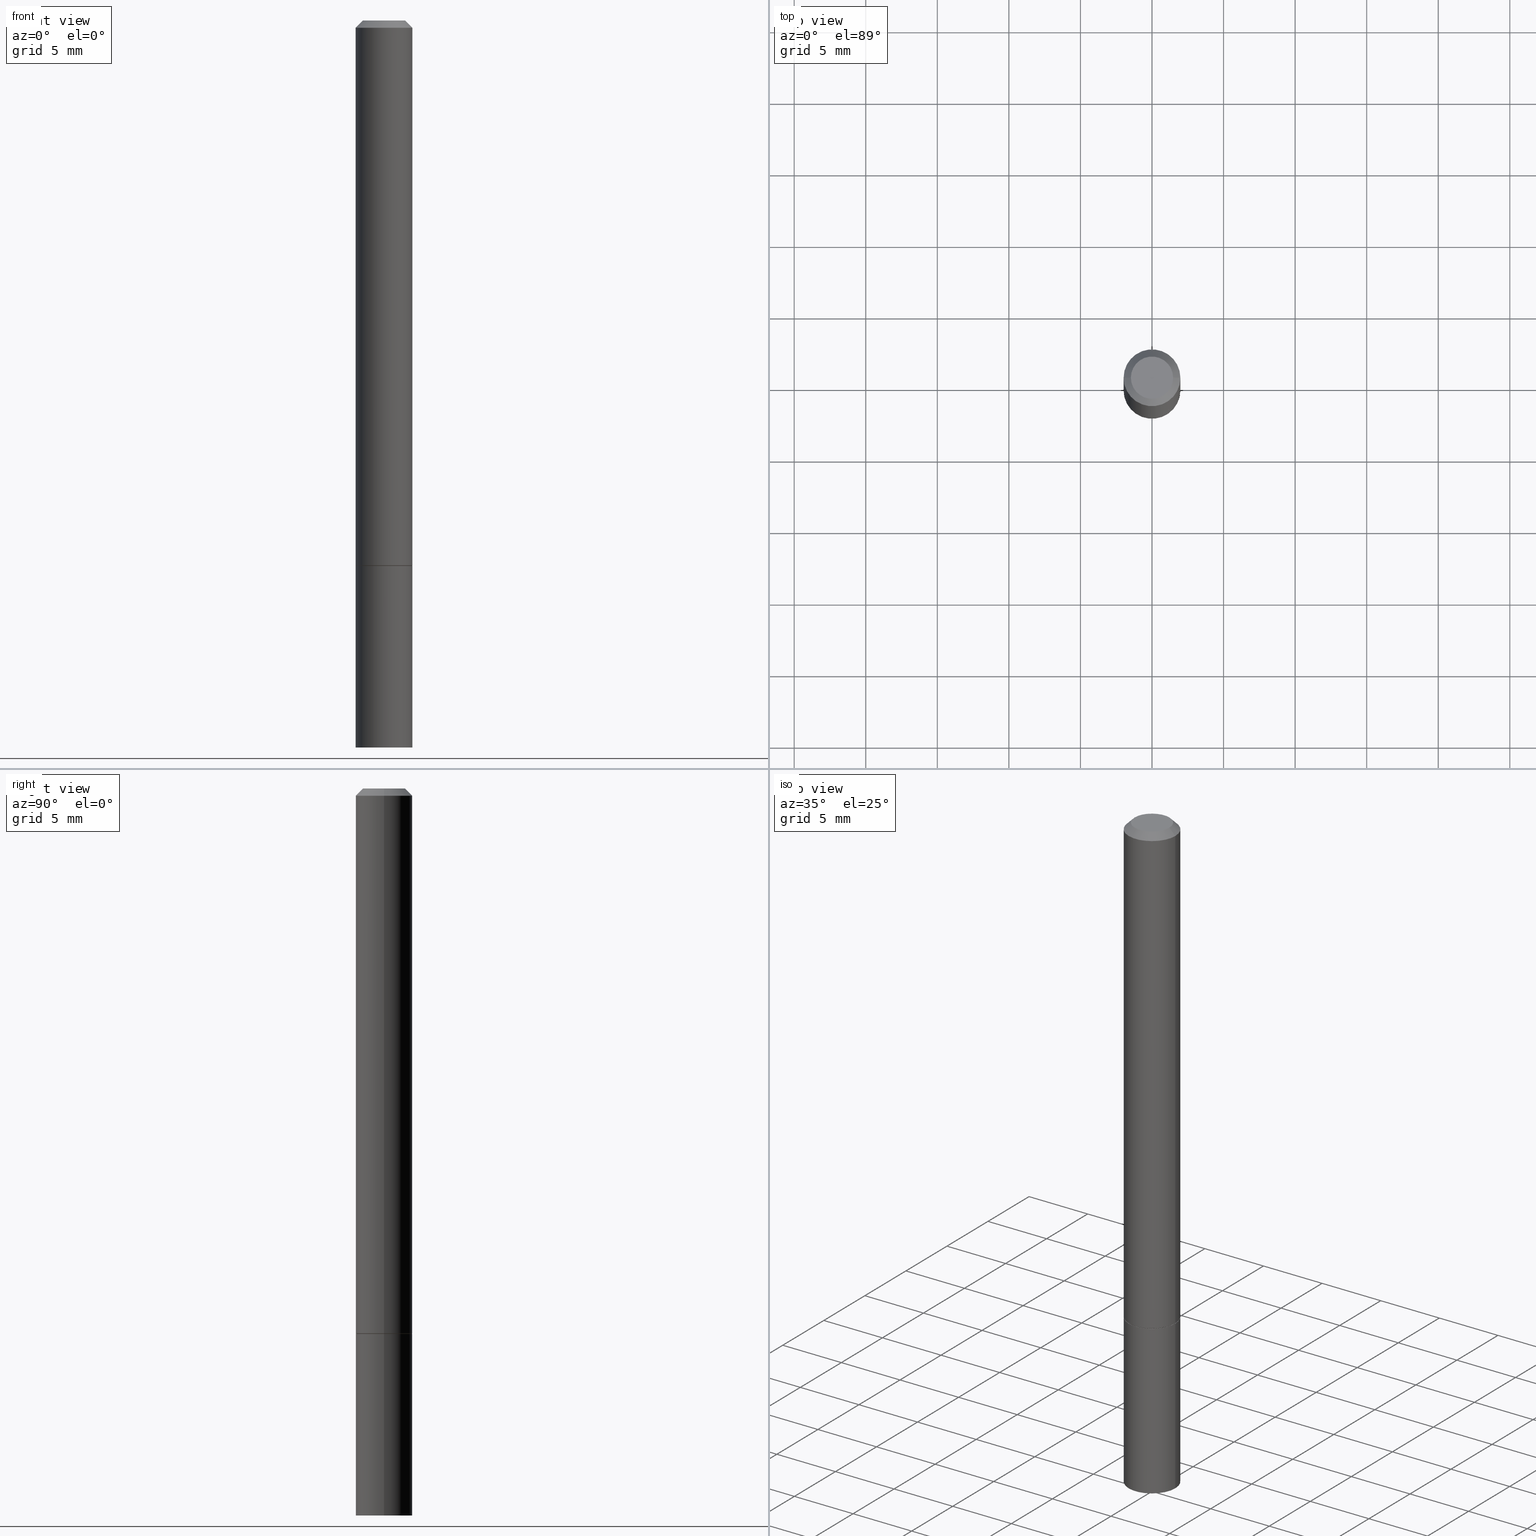
[diagram: canonical four-view strip — front | top / right | iso, engineering-drawing reading convention]
A machine part, canonical four-view strip (front | top / right | iso — engineering-drawing reading convention). The complete STEP part file that produces these views, byte-faithful:
ISO-10303-21;
HEADER;
FILE_DESCRIPTION (( 'STEP AP203' ),
    '1' );
FILE_NAME ('39019.STEP',
    '2023-03-21T20:43:33',
    ( '' ),
    ( '' ),
    'SwSTEP 2.0',
    'SolidWorks 2022',
    '' );
FILE_SCHEMA (( 'CONFIG_CONTROL_DESIGN' ));
ENDSEC;

DATA;
#1 = DIRECTION ( 'NONE',  ( -1.000000000000000000, 6.982962677686265922E-15, 0.000000000000000000 ) ) ;
#2 = CARTESIAN_POINT ( 'NONE',  ( 3.668203209277704335E-29, -5.237222008264717388E-15, -1.499999999999999778 ) ) ;
#3 = AXIS2_PLACEMENT_3D ( 'NONE', #119, #22, #182 ) ;
#4 = ADVANCED_FACE ( 'NONE', ( #9 ), #243, .T. ) ;
#5 = DIRECTION ( 'NONE',  ( 1.000000000000000000, -6.982962677686266711E-15, 0.000000000000000000 ) ) ;
#6 = APPLICATION_PROTOCOL_DEFINITION ( 'international standard', 'config_control_design', 1994, #260 ) ;
#7 = CARTESIAN_POINT ( 'NONE',  ( 3.665757740471518732E-29, -5.233730526925875170E-15, -1.498999999999999666 ) ) ;
#8 = COORDINATED_UNIVERSAL_TIME_OFFSET ( 5, 0, .BEHIND. ) ;
#9 = FACE_OUTER_BOUND ( 'NONE', #172, .T. ) ;
#10 = DIRECTION ( 'NONE',  ( 2.445468806185136597E-29, -3.491481338843145583E-15, -1.000000000000000000 ) ) ;
#11 = VERTEX_POINT ( 'NONE', #309 ) ;
#12 = LINE ( 'NONE', #373, #55 ) ;
#13 = EDGE_LOOP ( 'NONE', ( #302, #257, #346, #352 ) ) ;
#14 = FACE_OUTER_BOUND ( 'NONE', #168, .T. ) ;
#15 = VERTEX_POINT ( 'NONE', #120 ) ;
#16 = APPROVAL_DATE_TIME ( #300, #184 ) ;
#17 = AXIS2_PLACEMENT_3D ( 'NONE', #185, #124, #218 ) ;
#18 = EDGE_CURVE ( 'NONE', #200, #15, #203, .T. ) ;
#19 = VERTEX_POINT ( 'NONE', #269 ) ;
#20 = CALENDAR_DATE ( 2023, 21, 3 ) ;
#21 = LINE ( 'NONE', #204, #263 ) ;
#22 = DIRECTION ( 'NONE',  ( -2.445468806185136597E-29, 3.491481338843145583E-15, 1.000000000000000000 ) ) ;
#23 = DIRECTION ( 'NONE',  ( 1.000000000000000000, -6.982962677686265922E-15, 0.000000000000000000 ) ) ;
#25 = ORIENTED_EDGE ( 'NONE', *, *, #281, .T. ) ;
#24 = VECTOR ( 'NONE', #341, 39.37007874015748143 ) ;
#26 = LOCAL_TIME ( 16, 43, 33.00000000000000000, #386 ) ;
#27 = AXIS2_PLACEMENT_3D ( 'NONE', #201, #169, #131 ) ;
#28 = DATE_AND_TIME ( #20, #63 ) ;
#29 = DIRECTION ( 'NONE',  ( -2.445468806185136597E-29, 3.491481338843145583E-15, 1.000000000000000000 ) ) ;
#30 = ADVANCED_FACE ( 'NONE', ( #303 ), #207, .T. ) ;
#31 = CC_DESIGN_PERSON_AND_ORGANIZATION_ASSIGNMENT ( #82, #328, ( #95 ) ) ;
#32 = PERSON_AND_ORGANIZATION ( #306, #222 ) ;
#33 = AXIS2_PLACEMENT_3D ( 'NONE', #186, #99, #274 ) ;
#34 = LOCAL_TIME ( 16, 43, 33.00000000000000000, #318 ) ;
#35 = CARTESIAN_POINT ( 'NONE',  ( -0.07810000000000000275, -5.555158466346866012E-15, -1.499999999999999778 ) ) ;
#36 = EDGE_LOOP ( 'NONE', ( #81, #72, #299 ) ) ;
#37 = DIRECTION ( 'NONE',  ( 1.000000000000000000, -6.982962677686266711E-15, 4.876176775795935793E-29 ) ) ;
#38 = CC_DESIGN_APPROVAL ( #69, ( #246 ) ) ;
#39 = ORIENTED_EDGE ( 'NONE', *, *, #301, .F. ) ;
#40 = PERSON_AND_ORGANIZATION ( #306, #222 ) ;
#41 = LINE ( 'NONE', #196, #85 ) ;
#42 = ADVANCED_FACE ( 'NONE', ( #64 ), #311, .T. ) ;
#43 = ORIENTED_EDGE ( 'NONE', *, *, #73, .F. ) ;
#44 = DIRECTION ( 'NONE',  ( -1.000000000000000000, 6.982962677686265922E-15, -4.876176775795935793E-29 ) ) ;
#45 = ORIENTED_EDGE ( 'NONE', *, *, #118, .T. ) ;
#46 = FACE_OUTER_BOUND ( 'NONE', #178, .T. ) ;
#47 = AXIS2_PLACEMENT_3D ( 'NONE', #61, #159, #275 ) ;
#48 = ORIENTED_EDGE ( 'NONE', *, *, #94, .F. ) ;
#49 = AXIS2_PLACEMENT_3D ( 'NONE', #331, #110, #304 ) ;
#50 = LINE ( 'NONE', #59, #320 ) ;
#51 = CARTESIAN_POINT ( 'NONE',  ( -0.07809999999999980846, 4.755397583504331521E-16, -0.02000000000000001776 ) ) ;
#52 = ORIENTED_EDGE ( 'NONE', *, *, #365, .F. ) ;
#53 =( NAMED_UNIT ( * ) SI_UNIT ( $, .STERADIAN. ) SOLID_ANGLE_UNIT ( ) );
#54 = CLOSED_SHELL ( 'NONE', ( #161, #187, #189, #289, #30, #4, #327, #180 ) ) ;
#55 = VECTOR ( 'NONE', #106, 39.37007874015748143 ) ;
#56 = CARTESIAN_POINT ( 'NONE',  ( 4.890937612370276662E-31, -6.982962677686296539E-17, -0.02000000000000001776 ) ) ;
#57 = EDGE_CURVE ( 'NONE', #285, #11, #277, .T. ) ;
#58 = DATE_AND_TIME ( #334, #26 ) ;
#59 = CARTESIAN_POINT ( 'NONE',  ( 0.07809999999999980846, -6.056345204028183286E-16, -0.02000000000000001776 ) ) ;
#60 = DATE_TIME_ROLE ( 'classification_date' ) ;
#61 = CARTESIAN_POINT ( 'NONE',  ( 3.665757740471518732E-29, -5.233730526925875170E-15, -1.498999999999999666 ) ) ;
#62 = VECTOR ( 'NONE', #177, 39.37007874015748143 ) ;
#63 = LOCAL_TIME ( 16, 43, 33.00000000000000000, #294 ) ;
#64 = FACE_OUTER_BOUND ( 'NONE', #13, .T. ) ;
#65 = DIRECTION ( 'NONE',  ( -2.445468806185136597E-29, 3.491481338843145583E-15, 1.000000000000000000 ) ) ;
#66 = CARTESIAN_POINT ( 'NONE',  ( 0.07809999999999991949, -5.453693851272968448E-16, 3.808294061896621499E-30 ) ) ;
#67 = CIRCLE ( 'NONE', #139, 0.07809999999999980846 ) ;
#68 = AXIS2_PLACEMENT_3D ( 'NONE', #226, #345, #44 ) ;
#69 = APPROVAL ( #216, 'UNSPECIFIED' ) ;
#70 = EDGE_CURVE ( 'NONE', #290, #285, #362, .T. ) ;
#71 = DIRECTION ( 'NONE',  ( -1.000000000000000000, 6.982962677686265922E-15, -4.876176775795935793E-29 ) ) ;
#72 = ORIENTED_EDGE ( 'NONE', *, *, #73, .T. ) ;
#73 = EDGE_CURVE ( 'NONE', #316, #200, #158, .T. ) ;
#74 = CARTESIAN_POINT ( 'NONE',  ( 0.05809999999999985315, -5.021147270366716439E-16, 3.173941575800420060E-30 ) ) ;
#75 = VECTOR ( 'NONE', #114, 39.37007874015748143 ) ;
#76 = ORIENTED_EDGE ( 'NONE', *, *, #70, .T. ) ;
#77 = DIRECTION ( 'NONE',  ( 1.000000000000000000, -6.982962677686266711E-15, 4.876176775795935232E-29 ) ) ;
#78 = EDGE_CURVE ( 'NONE', #368, #11, #67, .T. ) ;
#79 = VERTEX_POINT ( 'NONE', #282 ) ;
#80 = DIRECTION ( 'NONE',  ( 1.000000000000000000, -6.982962677686266711E-15, 4.876176775795935232E-29 ) ) ;
#81 = ORIENTED_EDGE ( 'NONE', *, *, #281, .F. ) ;
#82 = PERSON_AND_ORGANIZATION ( #306, #222 ) ;
#83 = CARTESIAN_POINT ( 'NONE',  ( -0.07809999999999980846, 4.755397583504331521E-16, -0.02000000000000001776 ) ) ;
#84 = ORIENTED_EDGE ( 'NONE', *, *, #94, .T. ) ;
#85 = VECTOR ( 'NONE', #292, 39.37007874015748854 ) ;
#86 = CARTESIAN_POINT ( 'NONE',  ( 3.668203209277704335E-29, -5.237222008264717388E-15, -1.499999999999999778 ) ) ;
#87 = CARTESIAN_POINT ( 'NONE',  ( 0.07810000000000000275, -5.453693851272974364E-16, 3.808294061896625703E-30 ) ) ;
#88 = APPROVAL_ROLE ( '' ) ;
#89 = VECTOR ( 'NONE', #93, 39.37007874015748854 ) ;
#90 = AXIS2_PLACEMENT_3D ( 'NONE', #126, #250, #1 ) ;
#91 = DIRECTION ( 'NONE',  ( -1.000000000000000000, 6.982962677686265922E-15, 0.000000000000000000 ) ) ;
#92 = EDGE_CURVE ( 'NONE', #285, #378, #360, .T. ) ;
#93 = DIRECTION ( 'NONE',  ( 0.7071067811865232589, -2.468850131082003836E-15, 0.7071067811865715536 ) ) ;
#94 = EDGE_CURVE ( 'NONE', #15, #165, #121, .T. ) ;
#95 = PRODUCT_DEFINITION_FORMATION_WITH_SPECIFIED_SOURCE ( 'ANY', '', #205, .NOT_KNOWN. ) ;
#96 = LINE ( 'NONE', #193, #174 ) ;
#97 = DIRECTION ( 'NONE',  ( -2.445468806185136597E-29, 3.491481338843145583E-15, 1.000000000000000000 ) ) ;
#98 = CARTESIAN_POINT ( 'NONE',  ( 0.000000000000000000, 0.000000000000000000, 0.000000000000000000 ) ) ;
#99 = DIRECTION ( 'NONE',  ( -2.445468806185136597E-29, 3.491481338843145583E-15, 1.000000000000000000 ) ) ;
#100 = DIRECTION ( 'NONE',  ( -1.000000000000000000, 6.982962677686267499E-15, 0.000000000000000000 ) ) ;
#101 = LOCAL_TIME ( 16, 43, 33.00000000000000000, #8 ) ;
#102 = ORIENTED_EDGE ( 'NONE', *, *, #115, .T. ) ;
#103 = CYLINDRICAL_SURFACE ( 'NONE', #253, 0.07810000000000000275 ) ;
#104 = ORIENTED_EDGE ( 'NONE', *, *, #115, .F. ) ;
#105 = CC_DESIGN_PERSON_AND_ORGANIZATION_ASSIGNMENT ( #40, #228, ( #95 ) ) ;
#106 = DIRECTION ( 'NONE',  ( -2.445468806185136877E-29, 3.491481338843145188E-15, 1.000000000000000000 ) ) ;
#107 = CIRCLE ( 'NONE', #3, 0.07810000000000000275 ) ;
#108 = ORIENTED_EDGE ( 'NONE', *, *, #242, .F. ) ;
#109 = EDGE_LOOP ( 'NONE', ( #264, #198, #151, #135 ) ) ;
#110 = DIRECTION ( 'NONE',  ( -2.438088387897960049E-29, 3.491481338843145188E-15, 1.000000000000000000 ) ) ;
#111 = EDGE_CURVE ( 'NONE', #378, #368, #96, .T. ) ;
#112 = ORIENTED_EDGE ( 'NONE', *, *, #210, .T. ) ;
#113 = CONICAL_SURFACE ( 'NONE', #244, 0.07710000000000000187, 0.7853981633974141952 ) ;
#114 = DIRECTION ( 'NONE',  ( -0.7071067811865464625, 2.468850131082245622E-15, -0.7071067811865485719 ) ) ;
#115 = EDGE_CURVE ( 'NONE', #79, #290, #173, .T. ) ;
#116 = FACE_OUTER_BOUND ( 'NONE', #344, .T. ) ;
#117 = DIRECTION ( 'NONE',  ( -2.445468806185136597E-29, 3.491481338843145583E-15, 1.000000000000000000 ) ) ;
#118 = EDGE_CURVE ( 'NONE', #378, #285, #220, .T. ) ;
#119 = CARTESIAN_POINT ( 'NONE',  ( 4.890937612370273194E-29, -6.982962677686291165E-15, -2.000000000000000000 ) ) ;
#120 = CARTESIAN_POINT ( 'NONE',  ( 0.07810000000000000275, -5.782591393392014824E-15, -1.499999999999999778 ) ) ;
#121 = CIRCLE ( 'NONE', #342, 0.07810000000000000275 ) ;
#122 = CC_DESIGN_PERSON_AND_ORGANIZATION_ASSIGNMENT ( #130, #166, ( #246 ) ) ;
#123 = DIRECTION ( 'NONE',  ( 1.000000000000000000, -6.982962677686267499E-15, 0.000000000000000000 ) ) ;
#124 = DIRECTION ( 'NONE',  ( -2.445468806185136597E-29, 3.491481338843145583E-15, 1.000000000000000000 ) ) ;
#125 = CIRCLE ( 'NONE', #140, 0.07810000000000000275 ) ;
#126 = CARTESIAN_POINT ( 'NONE',  ( 1.011592276483428826E-27, -1.444285671085496418E-13, -41.36598569259547986 ) ) ;
#127 = APPROVAL_ROLE ( '' ) ;
#128 = ADVANCED_FACE ( 'NONE', ( #336 ), #192, .F. ) ;
#129 = CARTESIAN_POINT ( 'NONE',  ( 3.668203209277704335E-29, -5.237222008264717388E-15, -1.499999999999999778 ) ) ;
#130 = PERSON_AND_ORGANIZATION ( #306, #222 ) ;
#131 = DIRECTION ( 'NONE',  ( 1.000000000000000000, -6.982962677686266711E-15, 0.000000000000000000 ) ) ;
#132 = CALENDAR_DATE ( 2023, 21, 3 ) ;
#133 = CIRCLE ( 'NONE', #361, 0.05809999999999985315 ) ;
#134 = ORIENTED_EDGE ( 'NONE', *, *, #118, .F. ) ;
#135 = ORIENTED_EDGE ( 'NONE', *, *, #78, .T. ) ;
#136 = PERSON_AND_ORGANIZATION ( #306, #222 ) ;
#137 = DIRECTION ( 'NONE',  ( 2.438088387897960049E-29, -3.491481338843145188E-15, -1.000000000000000000 ) ) ;
#138 = ORIENTED_EDGE ( 'NONE', *, *, #70, .F. ) ;
#139 = AXIS2_PLACEMENT_3D ( 'NONE', #363, #97, #123 ) ;
#140 = AXIS2_PLACEMENT_3D ( 'NONE', #312, #65, #188 ) ;
#141 = ORIENTED_EDGE ( 'NONE', *, *, #242, .T. ) ;
#142 = EDGE_CURVE ( 'NONE', #11, #368, #375, .T. ) ;
#143 = EDGE_CURVE ( 'NONE', #374, #200, #125, .T. ) ;
#144 = EDGE_LOOP ( 'NONE', ( #261, #45, #371, #322 ) ) ;
#145 = DIRECTION ( 'NONE',  ( 1.000000000000000000, -6.982962677686265922E-15, 0.000000000000000000 ) ) ;
#146 = MANIFOLD_SOLID_BREP ( 'Body-Move/Copy2[2]', #54 ) ;
#147 = SECURITY_CLASSIFICATION_LEVEL ( 'unclassified' ) ;
#148 = MANIFOLD_SOLID_BREP ( 'Body-Move/Copy2[1]', #278 ) ;
#149 = CARTESIAN_POINT ( 'NONE',  ( 0.07710000000000000187, -5.775608430714328810E-15, -1.499999999999999778 ) ) ;
#150 = CC_DESIGN_APPROVAL ( #357, ( #367 ) ) ;
#151 = ORIENTED_EDGE ( 'NONE', *, *, #301, .T. ) ;
#152 = PLANE ( 'NONE',  #49 ) ;
#153 = DIRECTION ( 'NONE',  ( -1.000000000000000000, 6.982962677686267499E-15, 0.000000000000000000 ) ) ;
#154 = DIRECTION ( 'NONE',  ( 1.000000000000000000, -6.982962677686266711E-15, 4.876176775795935232E-29 ) ) ;
#155 = PERSON_AND_ORGANIZATION ( #306, #222 ) ;
#156 = CC_DESIGN_APPROVAL ( #184, ( #95 ) ) ;
#157 = CC_DESIGN_DATE_AND_TIME_ASSIGNMENT ( #28, #60, ( #367 ) ) ;
#158 = LINE ( 'NONE', #163, #314 ) ;
#159 = DIRECTION ( 'NONE',  ( -2.445468806185136597E-29, 3.491481338843145583E-15, 1.000000000000000000 ) ) ;
#160 = CIRCLE ( 'NONE', #27, 0.07810000000000000275 ) ;
#161 = ADVANCED_FACE ( 'NONE', ( #313 ), #113, .T. ) ;
#162 = PERSON_AND_ORGANIZATION_ROLE ( 'design_owner' ) ;
#163 = CARTESIAN_POINT ( 'NONE',  ( 5.019963266536729081E-19, -6.968671878504553375E-15, -1.995906952437995097 ) ) ;
#164 = APPLICATION_PROTOCOL_DEFINITION ( 'international standard', 'config_control_design', 1994, #240 ) ;
#165 = VERTEX_POINT ( 'NONE', #35 ) ;
#166 = PERSON_AND_ORGANIZATION_ROLE ( 'creator' ) ;
#167 = AXIS2_PLACEMENT_3D ( 'NONE', #354, #356, #272 ) ;
#168 = EDGE_LOOP ( 'NONE', ( #175, #254, #170, #39 ) ) ;
#169 = DIRECTION ( 'NONE',  ( -2.445468806185136597E-29, 3.491481338843145583E-15, 1.000000000000000000 ) ) ;
#170 = ORIENTED_EDGE ( 'NONE', *, *, #142, .T. ) ;
#171 = CC_DESIGN_PERSON_AND_ORGANIZATION_ASSIGNMENT ( #32, #162, ( #205 ) ) ;
#172 = EDGE_LOOP ( 'NONE', ( #108, #102, #76, #134 ) ) ;
#173 = CIRCLE ( 'NONE', #388, 0.07710000000000000187 ) ;
#174 = VECTOR ( 'NONE', #213, 39.37007874015748143 ) ;
#175 = ORIENTED_EDGE ( 'NONE', *, *, #210, .F. ) ;
#176 = DIRECTION ( 'NONE',  ( 0.7071067811865464625, -7.319954787623252890E-15, -0.7071067811865485719 ) ) ;
#177 = DIRECTION ( 'NONE',  ( -2.445468806185136877E-29, 3.491481338843145188E-15, 1.000000000000000000 ) ) ;
#178 = EDGE_LOOP ( 'NONE', ( #84, #319 ) ) ;
#179 = CC_DESIGN_DATE_AND_TIME_ASSIGNMENT ( #343, #252, ( #246 ) ) ;
#180 = ADVANCED_FACE ( 'NONE', ( #259 ), #262, .F. ) ;
#181 = CONICAL_SURFACE ( 'NONE', #223, 751.2258538476644389, 1.518436449235073482 ) ;
#182 = DIRECTION ( 'NONE',  ( 1.000000000000000000, -6.982962677686266711E-15, 0.000000000000000000 ) ) ;
#183 = CARTESIAN_POINT ( 'NONE',  ( -0.07809999999999991949, -6.437593292558994518E-15, -2.000000000000000000 ) ) ;
#184 = APPROVAL ( #364, 'UNSPECIFIED' ) ;
#185 = CARTESIAN_POINT ( 'NONE',  ( 4.890937612370276662E-31, -6.982962677686296539E-17, -0.02000000000000001776 ) ) ;
#186 = CARTESIAN_POINT ( 'NONE',  ( 0.000000000000000000, 0.000000000000000000, 0.000000000000000000 ) ) ;
#187 = ADVANCED_FACE ( 'NONE', ( #295 ), #284, .T. ) ;
#188 = DIRECTION ( 'NONE',  ( 1.000000000000000000, -6.982962677686266711E-15, 0.000000000000000000 ) ) ;
#189 = ADVANCED_FACE ( 'NONE', ( #14 ), #332, .T. ) ;
#190 = DIRECTION ( 'NONE',  ( 1.000000000000000000, 0.000000000000000000, 0.000000000000000000 ) ) ;
#191 = AXIS2_PLACEMENT_3D ( 'NONE', #7, #29, #5 ) ;
#192 = CONICAL_SURFACE ( 'NONE', #90, 751.2258538476644389, 1.518436449235073482 ) ;
#193 = CARTESIAN_POINT ( 'NONE',  ( -0.07809999999999991949, 5.549338766286376731E-16, -3.841688305489077071E-30 ) ) ;
#194 = COORDINATED_UNIVERSAL_TIME_OFFSET ( 5, 0, .BEHIND. ) ;
#195 = ORIENTED_EDGE ( 'NONE', *, *, #249, .T. ) ;
#196 = CARTESIAN_POINT ( 'NONE',  ( -0.07710000000000000187, -4.689393558993680526E-15, -1.499999999999999778 ) ) ;
#197 = AXIS2_PLACEMENT_3D ( 'NONE', #224, #10, #100 ) ;
#198 = ORIENTED_EDGE ( 'NONE', *, *, #350, .F. ) ;
#199 = DIRECTION ( 'NONE',  ( -2.445468806185136597E-29, 3.491481338843145583E-15, 1.000000000000000000 ) ) ;
#200 = VERTEX_POINT ( 'NONE', #376 ) ;
#201 = CARTESIAN_POINT ( 'NONE',  ( 3.668203209277704335E-29, -5.237222008264717388E-15, -1.499999999999999778 ) ) ;
#202 = EDGE_LOOP ( 'NONE', ( #43, #25, #235 ) ) ;
#203 = LINE ( 'NONE', #87, #62 ) ;
#204 = CARTESIAN_POINT ( 'NONE',  ( -5.019963265560543563E-19, -6.968671878504553375E-15, -1.995906952437995097 ) ) ;
#205 = PRODUCT ( '39019', '39019', '', ( #276 ) ) ;
#206 =( LENGTH_UNIT ( ) NAMED_UNIT ( * ) SI_UNIT ( $, .METRE. ) );
#207 = CYLINDRICAL_SURFACE ( 'NONE', #247, 0.07809999999999991949 ) ;
#208 =( GEOMETRIC_REPRESENTATION_CONTEXT ( 3 ) GLOBAL_UNCERTAINTY_ASSIGNED_CONTEXT ( ( #233 ) ) GLOBAL_UNIT_ASSIGNED_CONTEXT ( ( #265, #234, #53 ) ) REPRESENTATION_CONTEXT ( 'NONE', 'WORKASPACE' ) );
#209 = CARTESIAN_POINT ( 'NONE',  ( 0.07810000000000000275, -5.779099912053172606E-15, -1.498999999999999666 ) ) ;
#210 = EDGE_CURVE ( 'NONE', #230, #19, #133, .T. ) ;
#211 = ADVANCED_FACE ( 'NONE', ( #370 ), #103, .T. ) ;
#212 = APPROVAL_DATE_TIME ( #58, #357 ) ;
#213 = DIRECTION ( 'NONE',  ( -2.445468806185136877E-29, 3.491481338843145188E-15, 1.000000000000000000 ) ) ;
#214 = EDGE_CURVE ( 'NONE', #165, #15, #160, .T. ) ;
#215 = DIRECTION ( 'NONE',  ( -2.445468806185136597E-29, 3.491481338843145583E-15, 1.000000000000000000 ) ) ;
#216 = APPROVAL_STATUS ( 'not_yet_approved' ) ;
#217 = ADVANCED_FACE ( 'NONE', ( #46 ), #297, .F. ) ;
#218 = DIRECTION ( 'NONE',  ( 1.000000000000000000, -6.982962677686267499E-15, 0.000000000000000000 ) ) ;
#219 = DIMENSIONAL_EXPONENTS ( 1.000000000000000000, 0.000000000000000000, 0.000000000000000000, 0.000000000000000000, 0.000000000000000000, 0.000000000000000000, 0.000000000000000000 ) ;
#220 = CIRCLE ( 'NONE', #47, 0.07810000000000000275 ) ;
#221 = APPROVAL_ROLE ( '' ) ;
#222 = ORGANIZATION ( 'UNSPECIFIED', 'UNSPECIFIED', '' ) ;
#223 = AXIS2_PLACEMENT_3D ( 'NONE', #382, #238, #91 ) ;
#224 = CARTESIAN_POINT ( 'NONE',  ( 4.890937612370276662E-31, -6.982962677686296539E-17, -0.02000000000000001776 ) ) ;
#225 = ORIENTED_EDGE ( 'NONE', *, *, #355, .T. ) ;
#226 = CARTESIAN_POINT ( 'NONE',  ( 5.453693851273340198E-16, 0.07809999999999475695, -1.500000000000000222 ) ) ;
#227 = ORIENTED_EDGE ( 'NONE', *, *, #350, .T. ) ;
#228 = PERSON_AND_ORGANIZATION_ROLE ( 'creator' ) ;
#229 = CARTESIAN_POINT ( 'NONE',  ( 0.000000000000000000, 0.000000000000000000, 0.000000000000000000 ) ) ;
#230 = VERTEX_POINT ( 'NONE', #74 ) ;
#231 = CARTESIAN_POINT ( 'NONE',  ( 0.000000000000000000, 0.000000000000000000, 0.000000000000000000 ) ) ;
#232 = EDGE_LOOP ( 'NONE', ( #323, #348, #293, #330 ) ) ;
#233 = UNCERTAINTY_MEASURE_WITH_UNIT (LENGTH_MEASURE( 1.000000000000000082E-05 ), #265, 'distance_accuracy_value', 'NONE');
#234 =( NAMED_UNIT ( * ) PLANE_ANGLE_UNIT ( ) SI_UNIT ( $, .RADIAN. ) );
#235 = ORIENTED_EDGE ( 'NONE', *, *, #355, .F. ) ;
#236 = AXIS2_PLACEMENT_3D ( 'NONE', #271, #333, #23 ) ;
#237 = AXIS2_PLACEMENT_3D ( 'NONE', #98, #340, #190 ) ;
#238 = DIRECTION ( 'NONE',  ( 2.445468806185136597E-29, -3.491481338843145583E-15, -1.000000000000000000 ) ) ;
#239 = DIRECTION ( 'NONE',  ( -0.9986295347545742773, 6.790662755453666100E-15, -0.05233595624293709697 ) ) ;
#240 = APPLICATION_CONTEXT ( 'configuration controlled 3d designs of mechanical parts and assemblies' ) ;
#241 = CARTESIAN_POINT ( 'NONE',  ( -0.07810000000000000275, -2.096846200222727419E-15, -1.498999999999999666 ) ) ;
#242 = EDGE_CURVE ( 'NONE', #79, #378, #41, .T. ) ;
#243 = CONICAL_SURFACE ( 'NONE', #236, 0.07710000000000000187, 0.7853981633974141952 ) ;
#244 = AXIS2_PLACEMENT_3D ( 'NONE', #251, #366, #288 ) ;
#245 = DIRECTION ( 'NONE',  ( -2.445468806185136597E-29, 3.491481338843145583E-15, 1.000000000000000000 ) ) ;
#246 = PRODUCT_DEFINITION ( 'UNKNOWN', '', #95, #317 ) ;
#247 = AXIS2_PLACEMENT_3D ( 'NONE', #380, #117, #154 ) ;
#248 = CC_DESIGN_SECURITY_CLASSIFICATION ( #367, ( #95 ) ) ;
#249 = EDGE_CURVE ( 'NONE', #374, #165, #12, .T. ) ;
#250 = DIRECTION ( 'NONE',  ( 2.445468806185136597E-29, -3.491481338843145583E-15, -1.000000000000000000 ) ) ;
#251 = CARTESIAN_POINT ( 'NONE',  ( 3.668203209277704335E-29, -5.237222008264717388E-15, -1.499999999999999778 ) ) ;
#252 = DATE_TIME_ROLE ( 'creation_date' ) ;
#253 = AXIS2_PLACEMENT_3D ( 'NONE', #231, #349, #80 ) ;
#254 = ORIENTED_EDGE ( 'NONE', *, *, #258, .T. ) ;
#255 = APPROVAL_DATE_TIME ( #280, #69 ) ;
#256 = DIRECTION ( 'NONE',  ( -2.445468806185136597E-29, 3.491481338843145583E-15, 1.000000000000000000 ) ) ;
#257 = ORIENTED_EDGE ( 'NONE', *, *, #143, .T. ) ;
#258 = EDGE_CURVE ( 'NONE', #230, #11, #50, .T. ) ;
#259 = FACE_OUTER_BOUND ( 'NONE', #326, .T. ) ;
#260 = APPLICATION_CONTEXT ( 'configuration controlled 3d designs of mechanical parts and assemblies' ) ;
#261 = ORIENTED_EDGE ( 'NONE', *, *, #111, .F. ) ;
#262 = PLANE ( 'NONE',  #315 ) ;
#263 = VECTOR ( 'NONE', #239, 39.37007874015748143 ) ;
#264 = ORIENTED_EDGE ( 'NONE', *, *, #258, .F. ) ;
#265 =( CONVERSION_BASED_UNIT ( 'INCH', #379 ) LENGTH_UNIT ( ) NAMED_UNIT ( #219 ) );
#266 = ORIENTED_EDGE ( 'NONE', *, *, #92, .F. ) ;
#267 = LINE ( 'NONE', #51, #75 ) ;
#268 = APPROVAL_PERSON_ORGANIZATION ( #155, #357, #88 ) ;
#269 = CARTESIAN_POINT ( 'NONE',  ( -0.05809999999999985315, 4.406249449620020947E-16, -2.959251149157179307E-30 ) ) ;
#270 = CARTESIAN_POINT ( 'NONE',  ( 4.880577650073855844E-29, -6.969173874831158221E-15, -1.995906952437995097 ) ) ;
#271 = CARTESIAN_POINT ( 'NONE',  ( 3.668203209277704335E-29, -5.237222008264717388E-15, -1.499999999999999778 ) ) ;
#272 = DIRECTION ( 'NONE',  ( 1.000000000000000000, -6.982962677686266711E-15, 4.876176775795935793E-29 ) ) ;
#273 = APPROVAL_PERSON_ORGANIZATION ( #279, #69, #127 ) ;
#274 = DIRECTION ( 'NONE',  ( 1.000000000000000000, -6.982962677686266711E-15, 4.876176775795935232E-29 ) ) ;
#275 = DIRECTION ( 'NONE',  ( 1.000000000000000000, -6.982962677686266711E-15, 0.000000000000000000 ) ) ;
#276 = MECHANICAL_CONTEXT ( 'NONE', #240, 'mechanical' ) ;
#277 = LINE ( 'NONE', #66, #24 ) ;
#278 = CLOSED_SHELL ( 'NONE', ( #211, #128, #383, #42, #217 ) ) ;
#279 = PERSON_AND_ORGANIZATION ( #306, #222 ) ;
#280 = DATE_AND_TIME ( #283, #34 ) ;
#281 = EDGE_CURVE ( 'NONE', #316, #374, #21, .T. ) ;
#282 = CARTESIAN_POINT ( 'NONE',  ( -0.07710000000000000187, -4.684095104645458124E-15, -1.499999999999999778 ) ) ;
#283 = CALENDAR_DATE ( 2023, 21, 3 ) ;
#284 = CYLINDRICAL_SURFACE ( 'NONE', #337, 0.07809999999999991949 ) ;
#285 = VERTEX_POINT ( 'NONE', #209 ) ;
#286 = CALENDAR_DATE ( 2023, 21, 3 ) ;
#287 = CIRCLE ( 'NONE', #353, 0.07710000000000000187 ) ;
#288 = DIRECTION ( 'NONE',  ( 1.000000000000000000, -6.982962677686265922E-15, 0.000000000000000000 ) ) ;
#289 = ADVANCED_FACE ( 'NONE', ( #358 ), #298, .T. ) ;
#290 = VERTEX_POINT ( 'NONE', #149 ) ;
#291 = PRODUCT_DEFINITION_SHAPE ( 'NONE', 'NONE',  #246 ) ;
#292 = DIRECTION ( 'NONE',  ( -0.7071067811865232589, 7.493145998870265808E-15, 0.7071067811865715536 ) ) ;
#293 = ORIENTED_EDGE ( 'NONE', *, *, #142, .F. ) ;
#294 = COORDINATED_UNIVERSAL_TIME_OFFSET ( 5, 0, .BEHIND. ) ;
#295 = FACE_OUTER_BOUND ( 'NONE', #232, .T. ) ;
#296 = EDGE_LOOP ( 'NONE', ( #225, #195, #48, #305 ) ) ;
#297 = PLANE ( 'NONE',  #68 ) ;
#298 = CONICAL_SURFACE ( 'NONE', #381, 0.07809999999999980846, 0.7853981633974468357 ) ;
#299 = ORIENTED_EDGE ( 'NONE', *, *, #143, .F. ) ;
#300 = DATE_AND_TIME ( #132, #347 ) ;
#301 = EDGE_CURVE ( 'NONE', #19, #368, #267, .T. ) ;
#302 = ORIENTED_EDGE ( 'NONE', *, *, #249, .F. ) ;
#303 = FACE_OUTER_BOUND ( 'NONE', #144, .T. ) ;
#304 = DIRECTION ( 'NONE',  ( 1.000000000000000000, -6.982962677686265922E-15, 4.876176775795935793E-29 ) ) ;
#305 = ORIENTED_EDGE ( 'NONE', *, *, #18, .F. ) ;
#306 = PERSON ( 'UNSPECIFIED', 'UNSPECIFIED', 'UNSPECIFIED', ('UNSPECIFIED'), ('UNSPECIFIED'), ('UNSPECIFIED') ) ;
#307 = APPROVAL_STATUS ( 'not_yet_approved' ) ;
#308 = SHAPE_DEFINITION_REPRESENTATION ( #291, #390 ) ;
#309 = CARTESIAN_POINT ( 'NONE',  ( 0.07809999999999980846, -6.056345204028183286E-16, -0.02000000000000001776 ) ) ;
#310 = DIRECTION ( 'NONE',  ( 0.9986295347545742773, -7.033825938271998700E-15, -0.05233595624293709697 ) ) ;
#311 = CYLINDRICAL_SURFACE ( 'NONE', #33, 0.07810000000000000275 ) ;
#312 = CARTESIAN_POINT ( 'NONE',  ( 4.890937612370273194E-29, -6.982962677686291165E-15, -2.000000000000000000 ) ) ;
#313 = FACE_OUTER_BOUND ( 'NONE', #351, .T. ) ;
#314 = VECTOR ( 'NONE', #310, 39.37007874015748143 ) ;
#315 = AXIS2_PLACEMENT_3D ( 'NONE', #321, #137, #71 ) ;
#316 = VERTEX_POINT ( 'NONE', #270 ) ;
#317 = DESIGN_CONTEXT ( 'detailed design', #260, 'design' ) ;
#318 = COORDINATED_UNIVERSAL_TIME_OFFSET ( 5, 0, .BEHIND. ) ;
#319 = ORIENTED_EDGE ( 'NONE', *, *, #214, .T. ) ;
#320 = VECTOR ( 'NONE', #176, 39.37007874015748143 ) ;
#321 = CARTESIAN_POINT ( 'NONE',  ( 4.057101315735710372E-16, 0.05809999999999985315, -2.028550657867862335E-16 ) ) ;
#322 = ORIENTED_EDGE ( 'NONE', *, *, #78, .F. ) ;
#323 = ORIENTED_EDGE ( 'NONE', *, *, #92, .T. ) ;
#324 = CARTESIAN_POINT ( 'NONE',  ( 0.000000000000000000, 0.000000000000000000, 0.000000000000000000 ) ) ;
#325 = PRODUCT_RELATED_PRODUCT_CATEGORY ( 'detail', '', ( #205 ) ) ;
#326 = EDGE_LOOP ( 'NONE', ( #227, #112 ) ) ;
#327 = ADVANCED_FACE ( 'NONE', ( #116 ), #152, .F. ) ;
#328 = PERSON_AND_ORGANIZATION_ROLE ( 'design_supplier' ) ;
#329 = APPROVAL_PERSON_ORGANIZATION ( #369, #184, #221 ) ;
#330 = ORIENTED_EDGE ( 'NONE', *, *, #57, .F. ) ;
#331 = CARTESIAN_POINT ( 'NONE',  ( 3.668203209277704335E-29, -5.237222008264717388E-15, -1.499999999999999778 ) ) ;
#332 = CONICAL_SURFACE ( 'NONE', #197, 0.07809999999999980846, 0.7853981633974468357 ) ;
#333 = DIRECTION ( 'NONE',  ( -2.445468806185136597E-29, 3.491481338843145583E-15, 1.000000000000000000 ) ) ;
#334 = CALENDAR_DATE ( 2023, 21, 3 ) ;
#335 = DIRECTION ( 'NONE',  ( 1.000000000000000000, -6.982962677686266711E-15, 0.000000000000000000 ) ) ;
#336 = FACE_OUTER_BOUND ( 'NONE', #36, .T. ) ;
#337 = AXIS2_PLACEMENT_3D ( 'NONE', #229, #256, #77 ) ;
#338 = DIRECTION ( 'NONE',  ( 1.000000000000000000, -6.982962677686265922E-15, 0.000000000000000000 ) ) ;
#339 = CARTESIAN_POINT ( 'NONE',  ( 0.07710000000000000187, -5.775608430714328810E-15, -1.499999999999999778 ) ) ;
#340 = DIRECTION ( 'NONE',  ( 0.000000000000000000, 0.000000000000000000, 1.000000000000000000 ) ) ;
#341 = DIRECTION ( 'NONE',  ( -2.445468806185136877E-29, 3.491481338843145188E-15, 1.000000000000000000 ) ) ;
#342 = AXIS2_PLACEMENT_3D ( 'NONE', #129, #245, #335 ) ;
#343 = DATE_AND_TIME ( #286, #101 ) ;
#344 = EDGE_LOOP ( 'NONE', ( #52, #104 ) ) ;
#345 = DIRECTION ( 'NONE',  ( 2.438088387897960049E-29, -3.491481338843145188E-15, -1.000000000000000000 ) ) ;
#346 = ORIENTED_EDGE ( 'NONE', *, *, #18, .T. ) ;
#347 = LOCAL_TIME ( 16, 43, 33.00000000000000000, #194 ) ;
#348 = ORIENTED_EDGE ( 'NONE', *, *, #111, .T. ) ;
#349 = DIRECTION ( 'NONE',  ( -2.445468806185136597E-29, 3.491481338843145583E-15, 1.000000000000000000 ) ) ;
#350 = EDGE_CURVE ( 'NONE', #19, #230, #389, .T. ) ;
#351 = EDGE_LOOP ( 'NONE', ( #377, #141, #266, #138 ) ) ;
#352 = ORIENTED_EDGE ( 'NONE', *, *, #214, .F. ) ;
#353 = AXIS2_PLACEMENT_3D ( 'NONE', #86, #385, #145 ) ;
#354 = CARTESIAN_POINT ( 'NONE',  ( 0.000000000000000000, 0.000000000000000000, 0.000000000000000000 ) ) ;
#355 = EDGE_CURVE ( 'NONE', #200, #374, #107, .T. ) ;
#356 = DIRECTION ( 'NONE',  ( -2.445468806185136597E-29, 3.491481338843145583E-15, 1.000000000000000000 ) ) ;
#357 = APPROVAL ( #307, 'UNSPECIFIED' ) ;
#358 = FACE_OUTER_BOUND ( 'NONE', #109, .T. ) ;
#359 = FACE_OUTER_BOUND ( 'NONE', #202, .T. ) ;
#360 = CIRCLE ( 'NONE', #191, 0.07810000000000000275 ) ;
#361 = AXIS2_PLACEMENT_3D ( 'NONE', #324, #199, #37 ) ;
#362 = LINE ( 'NONE', #339, #89 ) ;
#363 = CARTESIAN_POINT ( 'NONE',  ( 4.890937612370276662E-31, -6.982962677686296539E-17, -0.02000000000000001776 ) ) ;
#364 = APPROVAL_STATUS ( 'not_yet_approved' ) ;
#365 = EDGE_CURVE ( 'NONE', #290, #79, #287, .T. ) ;
#366 = DIRECTION ( 'NONE',  ( -2.445468806185136597E-29, 3.491481338843145583E-15, 1.000000000000000000 ) ) ;
#367 = SECURITY_CLASSIFICATION ( '', '', #147 ) ;
#368 = VERTEX_POINT ( 'NONE', #83 ) ;
#369 = PERSON_AND_ORGANIZATION ( #306, #222 ) ;
#370 = FACE_OUTER_BOUND ( 'NONE', #296, .T. ) ;
#371 = ORIENTED_EDGE ( 'NONE', *, *, #57, .T. ) ;
#372 = PERSON_AND_ORGANIZATION_ROLE ( 'classification_officer' ) ;
#373 = CARTESIAN_POINT ( 'NONE',  ( -0.07810000000000000275, 5.549338766286382647E-16, -3.841688305489081275E-30 ) ) ;
#374 = VERTEX_POINT ( 'NONE', #183 ) ;
#375 = CIRCLE ( 'NONE', #17, 0.07809999999999980846 ) ;
#376 = CARTESIAN_POINT ( 'NONE',  ( 0.07809999999999991949, -7.518767571312248168E-15, -2.000000000000000000 ) ) ;
#377 = ORIENTED_EDGE ( 'NONE', *, *, #365, .T. ) ;
#378 = VERTEX_POINT ( 'NONE', #241 ) ;
#379 = LENGTH_MEASURE_WITH_UNIT ( LENGTH_MEASURE( 0.02539999999999999897 ), #206 );
#380 = CARTESIAN_POINT ( 'NONE',  ( 0.000000000000000000, 0.000000000000000000, 0.000000000000000000 ) ) ;
#381 = AXIS2_PLACEMENT_3D ( 'NONE', #56, #384, #153 ) ;
#382 = CARTESIAN_POINT ( 'NONE',  ( 1.011592276483428826E-27, -1.444285671085496418E-13, -41.36598569259547986 ) ) ;
#383 = ADVANCED_FACE ( 'NONE', ( #359 ), #181, .F. ) ;
#384 = DIRECTION ( 'NONE',  ( 2.445468806185136597E-29, -3.491481338843145583E-15, -1.000000000000000000 ) ) ;
#385 = DIRECTION ( 'NONE',  ( -2.445468806185136597E-29, 3.491481338843145583E-15, 1.000000000000000000 ) ) ;
#386 = COORDINATED_UNIVERSAL_TIME_OFFSET ( 5, 0, .BEHIND. ) ;
#387 = CC_DESIGN_PERSON_AND_ORGANIZATION_ASSIGNMENT ( #136, #372, ( #367 ) ) ;
#388 = AXIS2_PLACEMENT_3D ( 'NONE', #2, #215, #338 ) ;
#389 = CIRCLE ( 'NONE', #167, 0.05809999999999985315 ) ;
#390 = ADVANCED_BREP_SHAPE_REPRESENTATION ( '39019', ( #148, #146, #237 ), #208 ) ;
ENDSEC;
END-ISO-10303-21;
